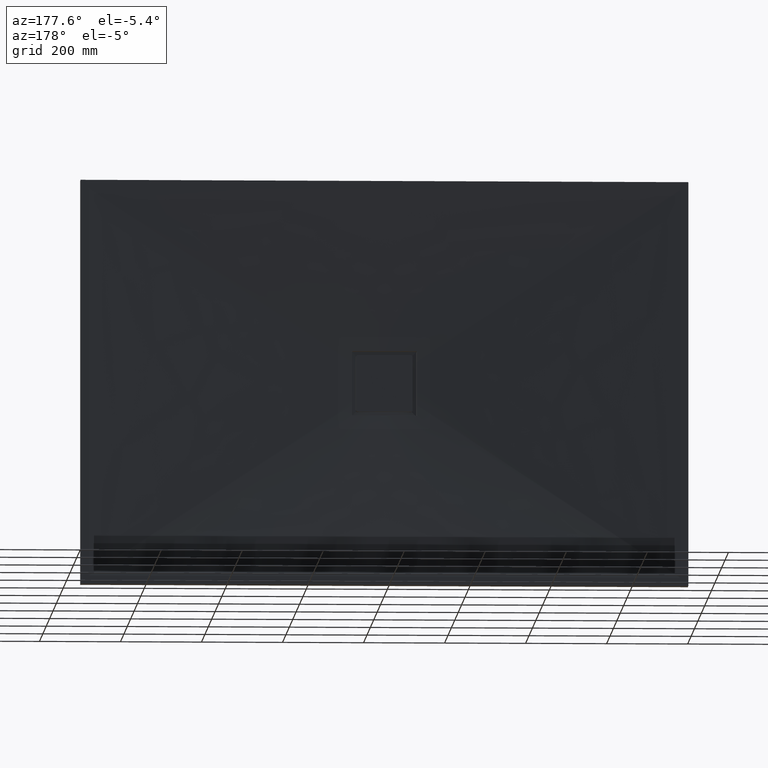
[diagram: clean part render]
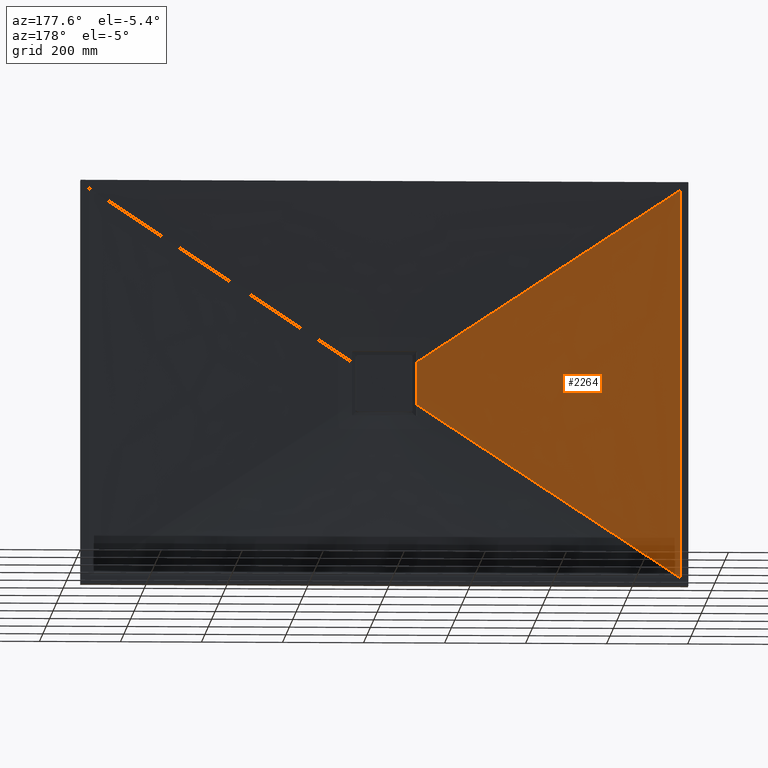
[diagram: same view with one face highlighted and labeled with its STEP entity id]
A machine part, auxiliary view. The second image highlights one B-rep face of the part: STEP entity #2264.
In plain terms, the highlighted face is a freeform B-spline surface patch.
Its self-contained STEP definition (entity closure, byte-faithful):
#43 = CARTESIAN_POINT ( 'NONE',  ( -80.00000000000018500, 20.29756753600627700, -52.60273972602733000 ) ) ;
#53 = CARTESIAN_POINT ( 'NONE',  ( -729.9999999999998900, 35.00000000000000000, 320.0000000000000600 ) ) ;
#164 = CARTESIAN_POINT ( 'NONE',  ( -80.00000000000018500, 20.29756753600627700, -52.60273972602733000 ) ) ;
#174 = CARTESIAN_POINT ( 'NONE',  ( -398.4222143554216000, 27.50000000000000400, -261.9762505350718100 ) ) ;
#227 = DIRECTION ( 'NONE',  ( -0.8354061718658442000, 0.01889615818747865000, -0.5493081678021996000 ) ) ;
#242 = CARTESIAN_POINT ( 'NONE',  ( -729.9999999999998900, 35.00000000000000000, 440.0000000000000000 ) ) ;
#278 = VECTOR ( 'NONE', #1009, 1000.000000000000000 ) ;
#320 = CARTESIAN_POINT ( 'NONE',  ( -730.0000000000000000, 35.00000000000000000, 160.0000000000001400 ) ) ;
#325 = CARTESIAN_POINT ( 'NONE',  ( -730.0000000000000000, 35.00000000000000000, 200.0000000000001400 ) ) ;
#389 = CARTESIAN_POINT ( 'NONE',  ( -78.51847946194620000, 20.00000000000000000, 15.83029865828932300 ) ) ;
#427 = CARTESIAN_POINT ( 'NONE',  ( -730.0000000000000000, 35.00000000000000000, 280.0000000000001100 ) ) ;
#452 = CARTESIAN_POINT ( 'NONE',  ( -729.9999999999998900, 35.00000000000000000, 480.0000000000000000 ) ) ;
#466 = EDGE_CURVE ( 'NONE', #2242, #1430, #2365, .T. ) ;
#577 = ORIENTED_EDGE ( 'NONE', *, *, #466, .T. ) ;
#595 = CARTESIAN_POINT ( 'NONE',  ( -730.0000000000001100, 35.00000000000000000, 40.00000000000010700 ) ) ;
#630 = ORIENTED_EDGE ( 'NONE', *, *, #2648, .T. ) ;
#677 = CARTESIAN_POINT ( 'NONE',  ( -66.84442871084364400, 20.00000000000000000, 43.95250107014369700 ) ) ;
#760 = CARTESIAN_POINT ( 'NONE',  ( -730.0000000000000000, 35.00000000000000000, -480.0000000000000000 ) ) ;
#775 = FACE_OUTER_BOUND ( 'NONE', #2240, .T. ) ;
#837 = CARTESIAN_POINT ( 'NONE',  ( -75.35221163484409600, 20.00000000000000000, 27.15291671612137800 ) ) ;
#840 = LINE ( 'NONE', #1013, #278 ) ;
#852 = CARTESIAN_POINT ( 'NONE',  ( -730.0000000000000000, 35.00000000000000000, 80.00000000000011400 ) ) ;
#877 = CARTESIAN_POINT ( 'NONE',  ( -79.69972740894576200, 20.00000000000000000, 7.981442448983843400 ) ) ;
#907 = CARTESIAN_POINT ( 'NONE',  ( -729.9999999999998900, 35.00000000000000000, 480.0000000000000000 ) ) ;
#981 = CARTESIAN_POINT ( 'NONE',  ( -729.9999999999995500, 35.00000000000000000, -480.0000000000000000 ) ) ;
#1009 = DIRECTION ( 'NONE',  ( 0.8354061718658444300, -0.01889615818747864700, -0.5493081678021992700 ) ) ;
#1013 = CARTESIAN_POINT ( 'NONE',  ( -398.4222143554217700, 27.50000000000000400, 261.9762505350718700 ) ) ;
#1016 = DIRECTION ( 'NONE',  ( 1.156482317317871500E-016, 0.0000000000000000000, 1.000000000000000000 ) ) ;
#1103 = CARTESIAN_POINT ( 'NONE',  ( -77.63771430308172200, 19.99999999999999300, 19.68811830135165100 ) ) ;
#1147 = CARTESIAN_POINT ( 'NONE',  ( -73.94783370635954600, 20.00000000000000000, -30.75960312254477500 ) ) ;
#1179 = VERTEX_POINT ( 'NONE', #907 ) ;
#1307 = ORIENTED_EDGE ( 'NONE', *, *, #3122, .T. ) ;
#1355 = CARTESIAN_POINT ( 'NONE',  ( -70.69989252939723200, 20.00000000000000000, -37.62925046358949300 ) ) ;
#1369 = CARTESIAN_POINT ( 'NONE',  ( -730.0000000000000000, 35.00000000000000000, -439.9999999999999400 ) ) ;
#1385 = CARTESIAN_POINT ( 'NONE',  ( -730.0000000000000000, 35.00000000000000000, -399.9999999999999400 ) ) ;
#1430 = VERTEX_POINT ( 'NONE', #981 ) ;
#1444 = CARTESIAN_POINT ( 'NONE',  ( -80.00000000000024200, 20.29756753600627700, 52.60273972602747200 ) ) ;
#1470 = VECTOR ( 'NONE', #1016, 1000.000000000000000 ) ;
#2173 = CARTESIAN_POINT ( 'NONE',  ( -730.0000000000000000, 35.00000000000000000, -159.9999999999998900 ) ) ;
#2227 = LINE ( 'NONE', #3026, #1470 ) ;
#2240 = EDGE_LOOP ( 'NONE', ( #1307, #630, #577, #3275 ) ) ;
#2242 = VERTEX_POINT ( 'NONE', #43 ) ;
#2248 = CARTESIAN_POINT ( 'NONE',  ( -730.0000000000000000, 35.00000000000000000, -39.99999999999989300 ) ) ;
#2264 = ADVANCED_FACE ( 'NONE', ( #775 ), #2660, .F. ) ;
#2288 = CARTESIAN_POINT ( 'NONE',  ( -80.00000000000025600, 20.00000000000000000, -3.990844955758466700 ) ) ;
#2365 = LINE ( 'NONE', #174, #2440 ) ;
#2373 = EDGE_CURVE ( 'NONE', #1430, #1179, #2227, .T. ) ;
#2387 = CARTESIAN_POINT ( 'NONE',  ( -730.0000000000000000, 35.00000000000000000, -79.99999999999990100 ) ) ;
#2399 = CARTESIAN_POINT ( 'NONE',  ( -80.00000000000025600, 20.00000000000000000, 3.990844955758626100 ) ) ;
#2425 = CARTESIAN_POINT ( 'NONE',  ( -79.69972740894577600, 20.00000000000000000, -7.981442448983685300 ) ) ;
#2440 = VECTOR ( 'NONE', #227, 1000.000000000000000 ) ;
#2447 = CARTESIAN_POINT ( 'NONE',  ( -730.0000000000000000, 35.00000000000000000, -319.9999999999999400 ) ) ;
#2461 = CARTESIAN_POINT ( 'NONE',  ( -75.35221163484409600, 19.99999999999999300, -27.15291671612123300 ) ) ;
#2592 = CARTESIAN_POINT ( 'NONE',  ( -730.0000000000000000, 35.00000000000000000, -279.9999999999999400 ) ) ;
#2608 = CARTESIAN_POINT ( 'NONE',  ( -77.63771430308172200, 19.99999999999999600, -19.68811830135150100 ) ) ;
#2619 = CARTESIAN_POINT ( 'NONE',  ( -729.9999999999998900, 35.00000000000000000, 400.0000000000000000 ) ) ;
#2631 = CARTESIAN_POINT ( 'NONE',  ( -730.0000000000000000, 35.00000000000000000, -199.9999999999998900 ) ) ;
#2645 = CARTESIAN_POINT ( 'NONE',  ( -78.51847946194620000, 20.00000000000000000, -15.83029865828916600 ) ) ;
#2648 = EDGE_CURVE ( 'NONE', #2798, #2242, #3233, .T. ) ;
#2660 = B_SPLINE_SURFACE_WITH_KNOTS ( 'NONE', 3, 1, ( 
 ( #452, #677 ),
 ( #242, #3271 ),
 ( #2619, #3285 ),
 ( #53, #3244 ),
 ( #427, #837 ),
 ( #325, #1103 ),
 ( #320, #389 ),
 ( #852, #877 ),
 ( #595, #2399 ),
 ( #2248, #2288 ),
 ( #2387, #2425 ),
 ( #2173, #2645 ),
 ( #2631, #2608 ),
 ( #2592, #2461 ),
 ( #2447, #1147 ),
 ( #1385, #1355 ),
 ( #1369, #2907 ),
 ( #760, #3056 ) ),
 .UNSPECIFIED., .F., .F., .F.,
 ( 4, 2, 2, 2, 2, 2, 2, 2, 4 ),
 ( 2, 2 ),
 ( 0.0000000000000000000, 0.1250000000000000000, 0.2500000000000000000, 0.3750000000000000000, 0.5000000000000000000, 0.6250000000000000000, 0.7500000000000000000, 0.8750000000000000000, 1.000000000000000000 ),
 ( 0.0000000000000000000, 1.000000000000000000 ),
 .UNSPECIFIED. ) ;
#2686 = CARTESIAN_POINT ( 'NONE',  ( -80.00000000000025600, 20.14388672363017500, 35.06888143455164200 ) ) ;
#2798 = VERTEX_POINT ( 'NONE', #3260 ) ;
#2811 = CARTESIAN_POINT ( 'NONE',  ( -80.00000000000021300, 20.14388539347732600, -35.06872967382462700 ) ) ;
#2858 = CARTESIAN_POINT ( 'NONE',  ( -79.99999999945710300, 19.99999877913259600, -17.53448752477188700 ) ) ;
#2879 = CARTESIAN_POINT ( 'NONE',  ( -79.99999999945710300, 20.00000122086740400, 17.53496761955863200 ) ) ;
#2907 = CARTESIAN_POINT ( 'NONE',  ( -68.85674365909467600, 20.00000000000000000, -40.89210541967846500 ) ) ;
#3026 = CARTESIAN_POINT ( 'NONE',  ( -730.0000000000000000, 35.00000000000000000, -480.0000000000000000 ) ) ;
#3056 = CARTESIAN_POINT ( 'NONE',  ( -66.84442871084365800, 20.00000000000000000, -43.95250107014354800 ) ) ;
#3122 = EDGE_CURVE ( 'NONE', #1179, #2798, #840, .T. ) ;
#3233 = B_SPLINE_CURVE_WITH_KNOTS ( 'NONE', 3,
 ( #1444, #2686, #2879, #2858, #2811, #164 ),
 .UNSPECIFIED., .F., .F.,
 ( 4, 2, 4 ),
 ( 0.0000000000000000000, 0.05260334132809228000, 0.1052066826561845600 ),
 .UNSPECIFIED. ) ;
#3244 = CARTESIAN_POINT ( 'NONE',  ( -73.94783370635951800, 20.00000000000000000, 30.75960312254492400 ) ) ;
#3260 = CARTESIAN_POINT ( 'NONE',  ( -80.00000000000024200, 20.29756753600627700, 52.60273972602747200 ) ) ;
#3271 = CARTESIAN_POINT ( 'NONE',  ( -68.85674365909466100, 19.99999999999999600, 40.89210541967861400 ) ) ;
#3275 = ORIENTED_EDGE ( 'NONE', *, *, #2373, .T. ) ;
#3285 = CARTESIAN_POINT ( 'NONE',  ( -70.69989252939718900, 20.00000000000000400, 37.62925046358964200 ) ) ;